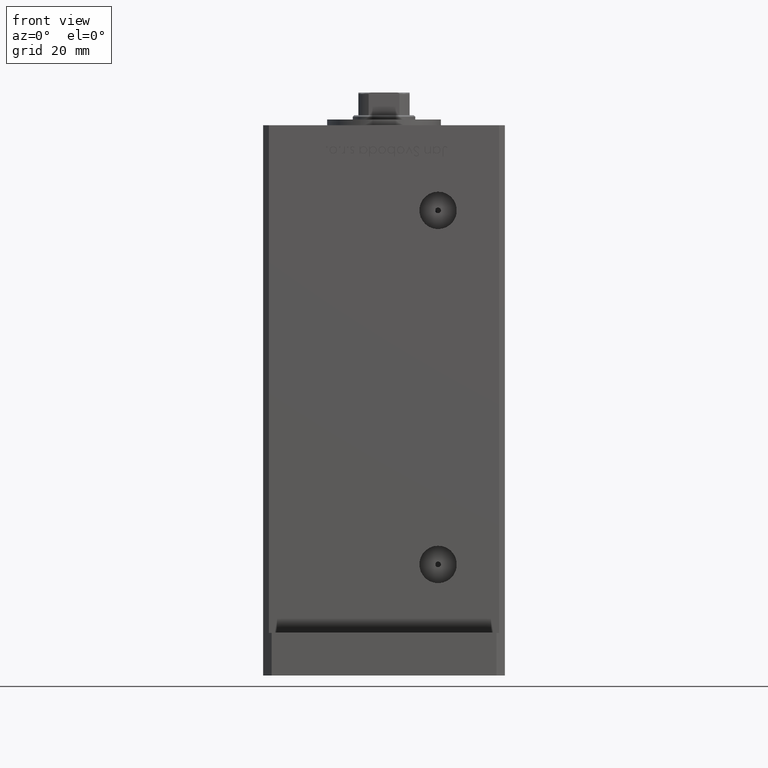
[diagram: clean part render]
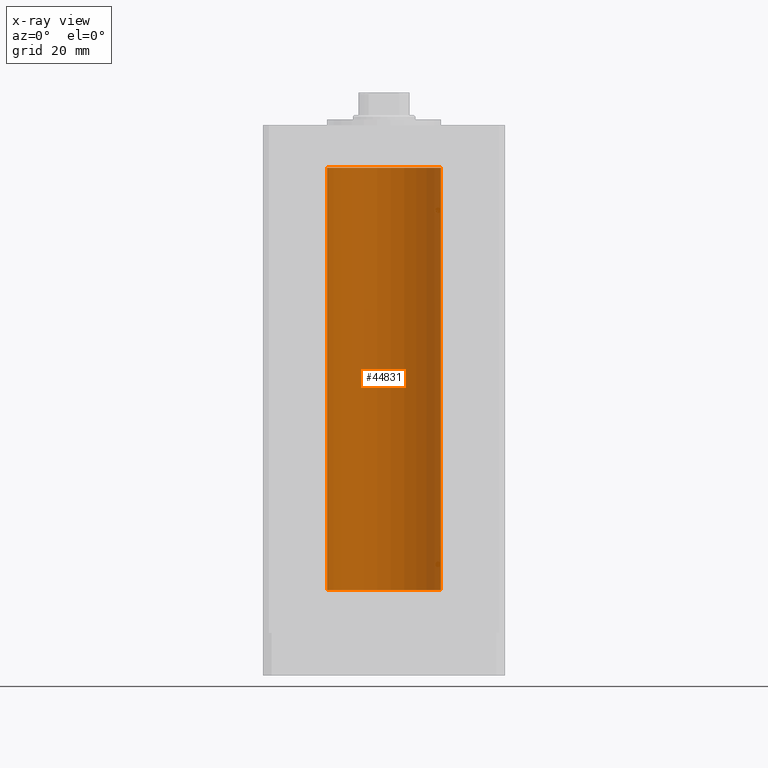
[diagram: x-ray — body ghosted, one internal face saturated and labeled with its STEP entity id]
A machine part, front view, then the same camera in x-ray: the body is ghosted and one INTERNAL B-rep face — a face not visible from any outside direction — is saturated and labeled: STEP entity #44831.
In plain terms, the highlighted cylindrical surface (partial cylindrical patch) has radius 20 mm, axis along (-0, -0, -1).
Its self-contained STEP definition (entity closure, byte-faithful):
#54 = EDGE_CURVE ( 'NONE', #31884, #47829, #7577, .T. ) ;
#1492 = AXIS2_PLACEMENT_3D ( 'NONE', #23868, #36913, #33092 ) ;
#1545 = VERTEX_POINT ( 'NONE', #8001 ) ;
#1848 = LINE ( 'NONE', #30854, #9494 ) ;
#3206 = CARTESIAN_POINT ( 'NONE',  ( 0.000000000000000000, 0.000000000000000000, 148.5000000000000000 ) ) ;
#3778 = CARTESIAN_POINT ( 'NONE',  ( -20.00000000000000000, 0.000000000000000000, 148.5000000000000000 ) ) ;
#4768 = CARTESIAN_POINT ( 'NONE',  ( 0.000000000000000000, 0.000000000000000000, 0.000000000000000000 ) ) ;
#4940 = CARTESIAN_POINT ( 'NONE',  ( 20.00000000000000000, 2.449293598294706513E-15, 148.5000000000000000 ) ) ;
#6888 = EDGE_LOOP ( 'NONE', ( #8150, #47176, #50467, #12877 ) ) ;
#7577 = CIRCLE ( 'NONE', #1492, 20.00000000000000000 ) ;
#8001 = CARTESIAN_POINT ( 'NONE',  ( -20.00000000000000000, 0.000000000000000000, 0.000000000000000000 ) ) ;
#8150 = ORIENTED_EDGE ( 'NONE', *, *, #42603, .F. ) ;
#9494 = VECTOR ( 'NONE', #52087, 1000.000000000000000 ) ;
#11069 = CYLINDRICAL_SURFACE ( 'NONE', #14168, 20.00000000000000000 ) ;
#12877 = ORIENTED_EDGE ( 'NONE', *, *, #13710, .F. ) ;
#13710 = EDGE_CURVE ( 'NONE', #45467, #1545, #38186, .T. ) ;
#14168 = AXIS2_PLACEMENT_3D ( 'NONE', #3206, #32517, #44496 ) ;
#14790 = AXIS2_PLACEMENT_3D ( 'NONE', #4768, #50132, #21306 ) ;
#21306 = DIRECTION ( 'NONE',  ( 1.000000000000000000, 0.000000000000000000, 0.000000000000000000 ) ) ;
#23868 = CARTESIAN_POINT ( 'NONE',  ( 0.000000000000000000, 0.000000000000000000, 148.5000000000000000 ) ) ;
#24353 = FACE_OUTER_BOUND ( 'NONE', #6888, .T. ) ;
#30502 = EDGE_CURVE ( 'NONE', #47829, #1545, #1848, .T. ) ;
#30854 = CARTESIAN_POINT ( 'NONE',  ( -20.00000000000000000, 0.000000000000000000, 148.5000000000000000 ) ) ;
#31884 = VERTEX_POINT ( 'NONE', #37048 ) ;
#32517 = DIRECTION ( 'NONE',  ( -0.000000000000000000, -0.000000000000000000, -1.000000000000000000 ) ) ;
#33092 = DIRECTION ( 'NONE',  ( 1.000000000000000000, 0.000000000000000000, 0.000000000000000000 ) ) ;
#36913 = DIRECTION ( 'NONE',  ( -0.000000000000000000, 0.000000000000000000, 1.000000000000000000 ) ) ;
#37023 = DIRECTION ( 'NONE',  ( -0.000000000000000000, -0.000000000000000000, -1.000000000000000000 ) ) ;
#37048 = CARTESIAN_POINT ( 'NONE',  ( 20.00000000000000000, 2.449293598294706513E-15, 148.5000000000000000 ) ) ;
#38186 = CIRCLE ( 'NONE', #14790, 20.00000000000000000 ) ;
#41003 = VECTOR ( 'NONE', #37023, 1000.000000000000000 ) ;
#42603 = EDGE_CURVE ( 'NONE', #31884, #45467, #45712, .T. ) ;
#44496 = DIRECTION ( 'NONE',  ( -1.000000000000000000, 0.000000000000000000, 0.000000000000000000 ) ) ;
#44831 = ADVANCED_FACE ( 'NONE', ( #24353 ), #11069, .F. ) ;
#45467 = VERTEX_POINT ( 'NONE', #45689 ) ;
#45689 = CARTESIAN_POINT ( 'NONE',  ( 20.00000000000000000, 2.449293598294706513E-15, 0.000000000000000000 ) ) ;
#45712 = LINE ( 'NONE', #4940, #41003 ) ;
#47176 = ORIENTED_EDGE ( 'NONE', *, *, #54, .T. ) ;
#47829 = VERTEX_POINT ( 'NONE', #3778 ) ;
#50132 = DIRECTION ( 'NONE',  ( -0.000000000000000000, 0.000000000000000000, 1.000000000000000000 ) ) ;
#50467 = ORIENTED_EDGE ( 'NONE', *, *, #30502, .T. ) ;
#52087 = DIRECTION ( 'NONE',  ( -0.000000000000000000, -0.000000000000000000, -1.000000000000000000 ) ) ;